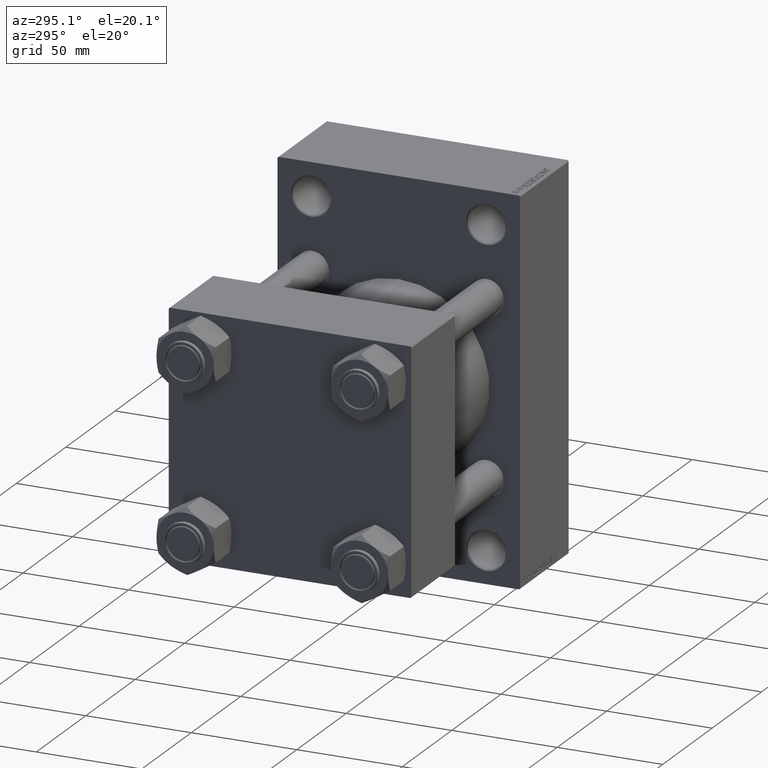
[diagram: clean part render]
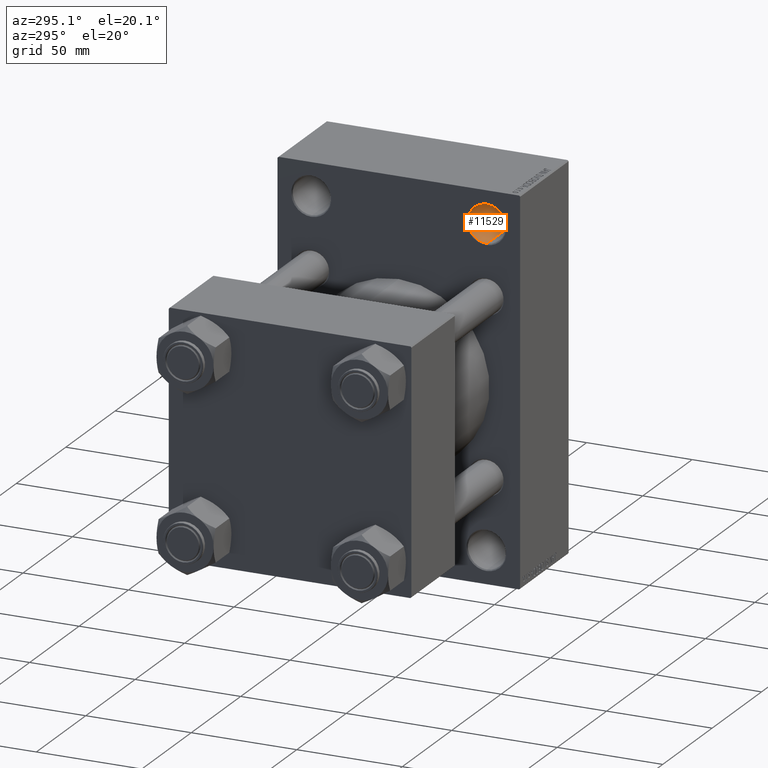
[diagram: same view with one face highlighted and labeled with its STEP entity id]
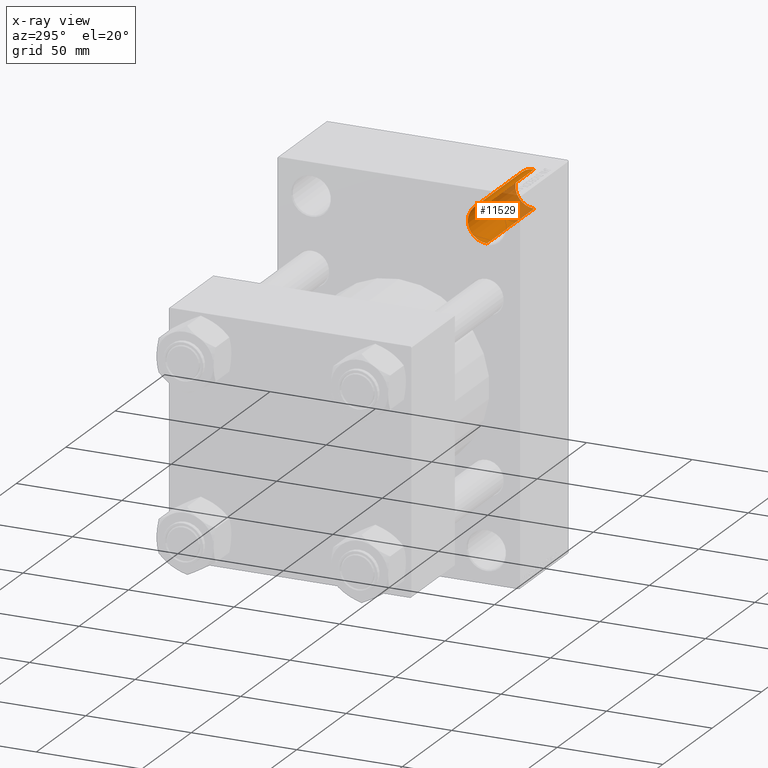
[diagram: x-ray of the same camera — body ghosted, the highlighted face saturated]
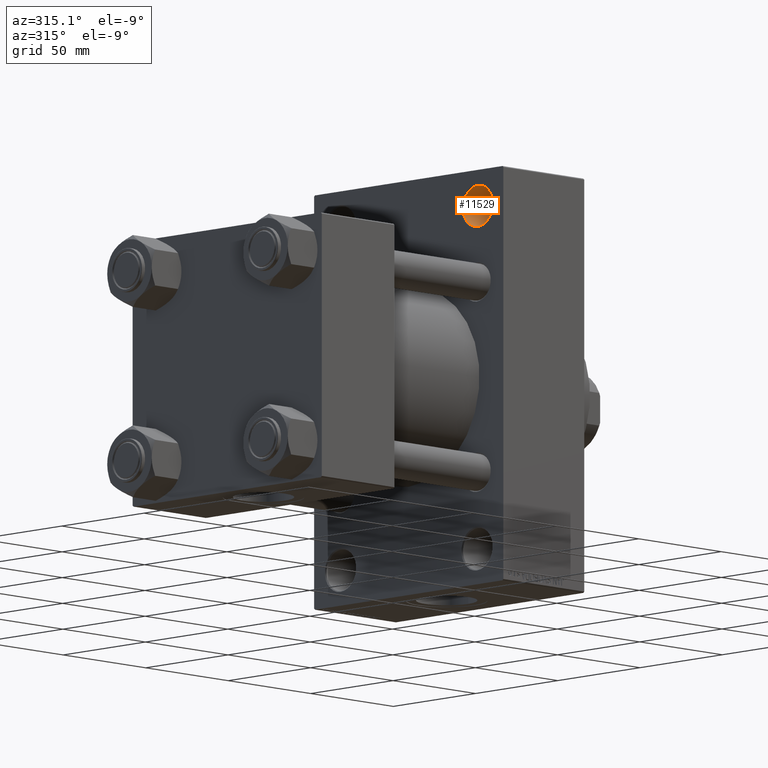
[diagram: same view with one face highlighted and labeled with its STEP entity id]
A machine part, auxiliary view. The second image highlights one B-rep face of the part: STEP entity #11529.
The next image is the same camera in x-ray: the body ghosted, the highlighted face saturated — about 34% of this face is hidden behind the body in this view.
A second angle (auxiliary view) of the same face is appended — the face is thin or edge-on in the first view.
In plain terms, the highlighted cylindrical surface (edge-blend (fillet) strip) has radius 9 mm, axis along (1, 0, 0).
Its self-contained STEP definition (entity closure, byte-faithful):
#3303 = ORIENTED_EDGE ( 'NONE', *, *, #33841, .T. ) ;
#3870 = DIRECTION ( 'NONE',  ( 1.000000000000000000, -0.000000000000000000, -0.000000000000000000 ) ) ;
#4695 = DIRECTION ( 'NONE',  ( 1.000000000000000000, 0.000000000000000000, 0.000000000000000000 ) ) ;
#5307 = DIRECTION ( 'NONE',  ( 1.000000000000000000, -0.000000000000000000, -0.000000000000000000 ) ) ;
#6262 = ORIENTED_EDGE ( 'NONE', *, *, #26618, .T. ) ;
#6356 = LINE ( 'NONE', #24671, #42686 ) ;
#7255 = VERTEX_POINT ( 'NONE', #35553 ) ;
#9278 = CARTESIAN_POINT ( 'NONE',  ( 110.5000000000000426, -41.50000000000000711, 65.50000000000001421 ) ) ;
#10508 = DIRECTION ( 'NONE',  ( 1.000000000000000000, -0.000000000000000000, -0.000000000000000000 ) ) ;
#10705 = EDGE_LOOP ( 'NONE', ( #31642, #6262, #20222, #3303 ) ) ;
#11529 = ADVANCED_FACE ( 'NONE', ( #32444 ), #37640, .F. ) ;
#12616 = DIRECTION ( 'NONE',  ( 0.000000000000000000, 0.000000000000000000, 1.000000000000000000 ) ) ;
#15484 = CARTESIAN_POINT ( 'NONE',  ( 84.54415587728431092, -41.50000000000000711, 74.50000000000001421 ) ) ;
#18858 = CARTESIAN_POINT ( 'NONE',  ( 110.5000000000000426, -41.50000000000000711, 74.50000000000001421 ) ) ;
#18945 = AXIS2_PLACEMENT_3D ( 'NONE', #18858, #25386, #25862 ) ;
#20222 = ORIENTED_EDGE ( 'NONE', *, *, #23033, .T. ) ;
#20436 = CIRCLE ( 'NONE', #18945, 8.999999999999994671 ) ;
#23033 = EDGE_CURVE ( 'NONE', #37184, #39502, #46033, .T. ) ;
#23798 = CARTESIAN_POINT ( 'NONE',  ( 110.5000000000000426, -41.50000000000000711, 83.50000000000000000 ) ) ;
#24526 = VECTOR ( 'NONE', #5307, 1000.000000000000000 ) ;
#24671 = CARTESIAN_POINT ( 'NONE',  ( 84.54415587728431092, -41.50000000000000711, 83.50000000000000000 ) ) ;
#25386 = DIRECTION ( 'NONE',  ( -1.000000000000000000, -0.000000000000000000, -0.000000000000000000 ) ) ;
#25862 = DIRECTION ( 'NONE',  ( 0.000000000000000000, 0.000000000000000000, 1.000000000000000000 ) ) ;
#26351 = DIRECTION ( 'NONE',  ( 0.000000000000000000, 0.000000000000000000, -1.000000000000000000 ) ) ;
#26618 = EDGE_CURVE ( 'NONE', #34986, #37184, #20436, .T. ) ;
#29283 = AXIS2_PLACEMENT_3D ( 'NONE', #15484, #10508, #26351 ) ;
#29569 = EDGE_CURVE ( 'NONE', #34986, #7255, #6356, .T. ) ;
#29776 = CIRCLE ( 'NONE', #36667, 8.999999999999994671 ) ;
#31642 = ORIENTED_EDGE ( 'NONE', *, *, #29569, .F. ) ;
#32444 = FACE_OUTER_BOUND ( 'NONE', #10705, .T. ) ;
#33841 = EDGE_CURVE ( 'NONE', #39502, #7255, #29776, .T. ) ;
#34986 = VERTEX_POINT ( 'NONE', #23798 ) ;
#35553 = CARTESIAN_POINT ( 'NONE',  ( 158.4999999999999716, -41.50000000000000711, 83.50000000000000000 ) ) ;
#36667 = AXIS2_PLACEMENT_3D ( 'NONE', #45646, #4695, #12616 ) ;
#37184 = VERTEX_POINT ( 'NONE', #9278 ) ;
#37640 = CYLINDRICAL_SURFACE ( 'NONE', #29283, 8.999999999999994671 ) ;
#38490 = CARTESIAN_POINT ( 'NONE',  ( 158.4999999999999716, -41.50000000000000711, 65.50000000000001421 ) ) ;
#39502 = VERTEX_POINT ( 'NONE', #38490 ) ;
#41930 = CARTESIAN_POINT ( 'NONE',  ( 84.54415587728431092, -41.50000000000000711, 65.50000000000001421 ) ) ;
#42686 = VECTOR ( 'NONE', #3870, 1000.000000000000000 ) ;
#45646 = CARTESIAN_POINT ( 'NONE',  ( 158.4999999999999716, -41.50000000000000711, 74.50000000000001421 ) ) ;
#46033 = LINE ( 'NONE', #41930, #24526 ) ;